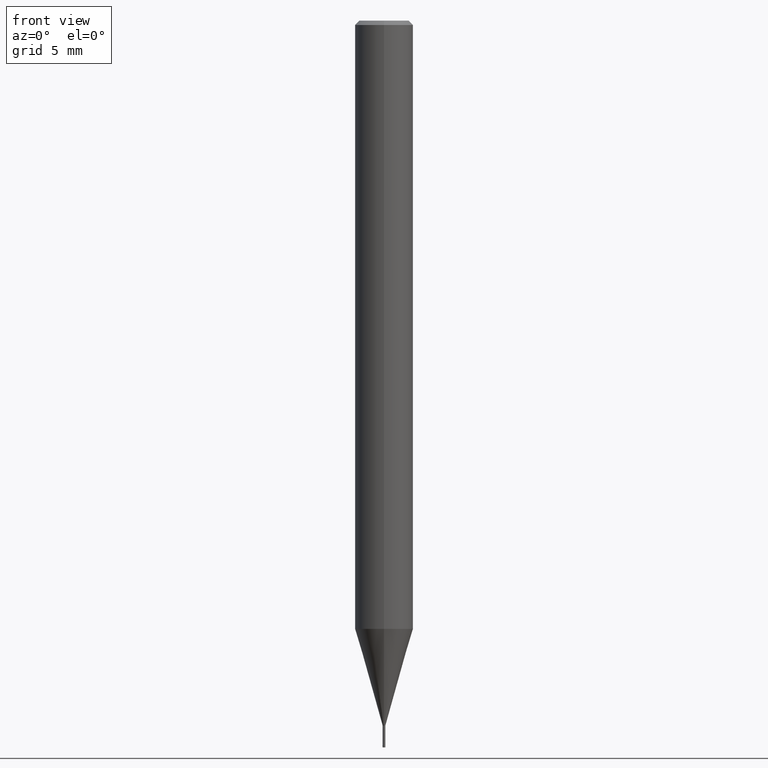
[diagram: clean part render]
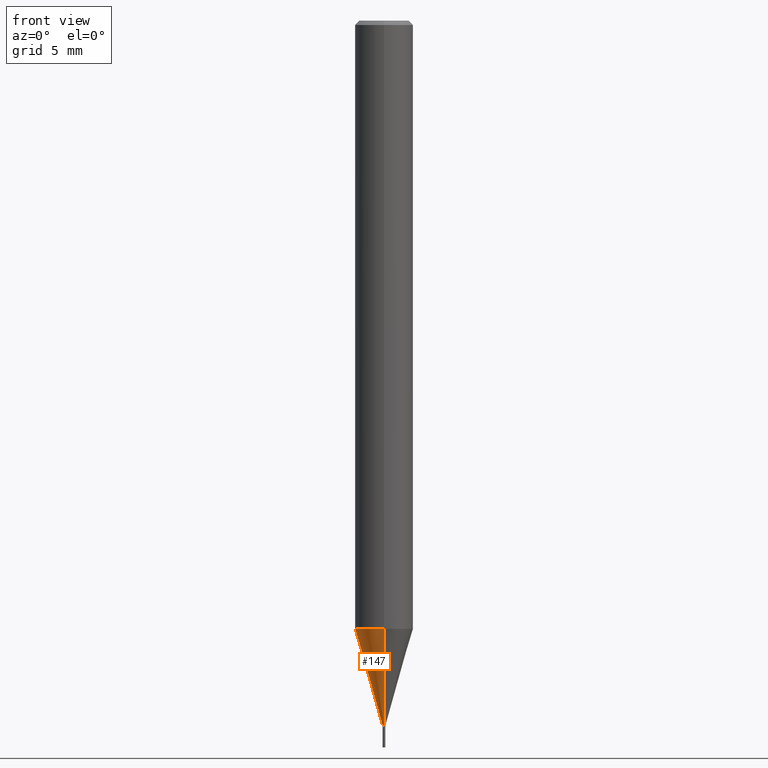
[diagram: same view with one face highlighted and labeled with its STEP entity id]
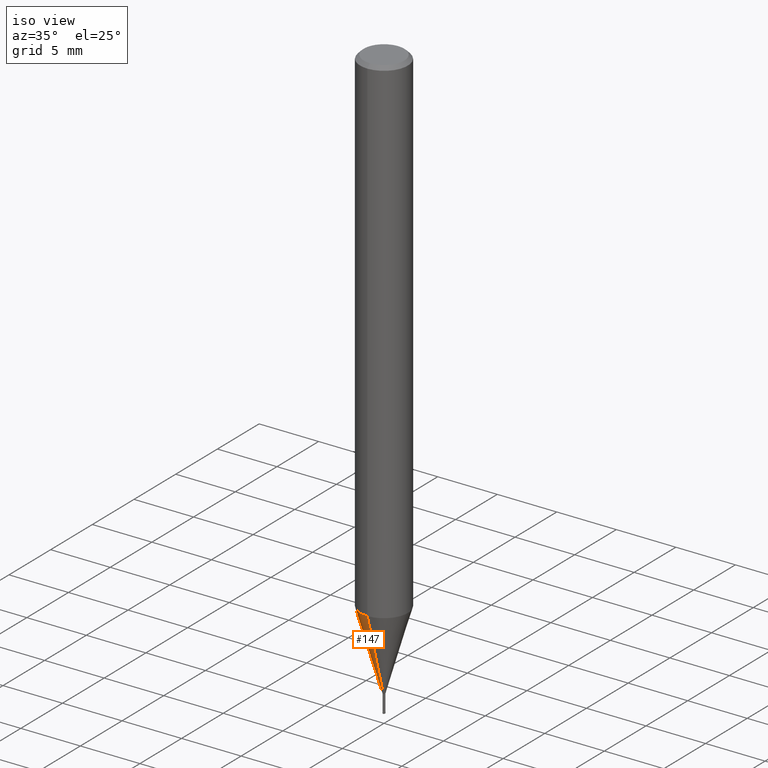
[diagram: same view with one face highlighted and labeled with its STEP entity id]
A machine part, front view. The second image highlights one B-rep face of the part: STEP entity #147.
A second angle (iso view) of the same face is appended — the face is thin or edge-on in the first view.
In plain terms, the highlighted conical surface has half-angle 16.001 deg.
Its self-contained STEP definition (entity closure, byte-faithful):
#147=ADVANCED_FACE('',(#382),#383,.T.);
#167=EDGE_CURVE('',#265,#309,#403,.T.);
#197=EDGE_CURVE('',#265,#253,#435,.T.);
#223=EDGE_CURVE('',#309,#305,#468,.T.);
#253=VERTEX_POINT('',#502);
#265=VERTEX_POINT('',#517);
#305=VERTEX_POINT('',#560);
#309=VERTEX_POINT('',#564);
#337=EDGE_CURVE('',#305,#253,#597,.T.);
#382=FACE_OUTER_BOUND('',#641,.T.);
#383=CONICAL_SURFACE('',#642,1.0462,0.279262361421134);
#403=LINE('',#670,#671);
#435=CIRCLE('',#716,0.09245);
#468=CIRCLE('',#754,1.99995);
#502=CARTESIAN_POINT('',(0.0,0.09245,-48.49));
#517=CARTESIAN_POINT('',(1.13214857410879E-017,-0.09245,-48.49));
#560=CARTESIAN_POINT('',(0.0,1.99995,-41.838));
#564=CARTESIAN_POINT('',(2.44915147732706E-016,-1.99995,-41.838));
#597=LINE('',#919,#920);
#641=EDGE_LOOP('',(#947,#948,#949,#950));
#642=AXIS2_PLACEMENT_3D('',#951,#952,#953);
#670=CARTESIAN_POINT('',(1.28118316736897E-016,-1.0462,-45.164));
#671=VECTOR('',#965,1.0);
#716=AXIS2_PLACEMENT_3D('',#1003,#1004,#1005);
#754=AXIS2_PLACEMENT_3D('',#1059,#1060,#1061);
#919=CARTESIAN_POINT('',(-1.28118316736897E-016,1.0462,-45.164));
#920=VECTOR('',#1230,1.0);
#947=ORIENTED_EDGE('',*,*,#337,.T.);
#948=ORIENTED_EDGE('',*,*,#197,.F.);
#949=ORIENTED_EDGE('',*,*,#167,.T.);
#950=ORIENTED_EDGE('',*,*,#223,.T.);
#951=CARTESIAN_POINT('',(0.0,0.0,-45.164));
#952=DIRECTION('',(-0.0,-0.0,1.0));
#953=DIRECTION('',(0.0,1.0,0.0));
#965=DIRECTION('',(3.37558653544073E-017,-0.275646661876649,0.961259027419904));
#1003=CARTESIAN_POINT('',(0.0,0.0,-48.49));
#1004=DIRECTION('',(0.0,0.0,-1.0));
#1005=DIRECTION('',(0.0,1.0,0.0));
#1059=CARTESIAN_POINT('',(0.0,0.0,-41.838));
#1060=DIRECTION('',(0.0,0.0,-1.0));
#1061=DIRECTION('',(0.0,1.0,0.0));
#1230=DIRECTION('',(3.37558653544073E-017,-0.275646661876649,-0.961259027419904));